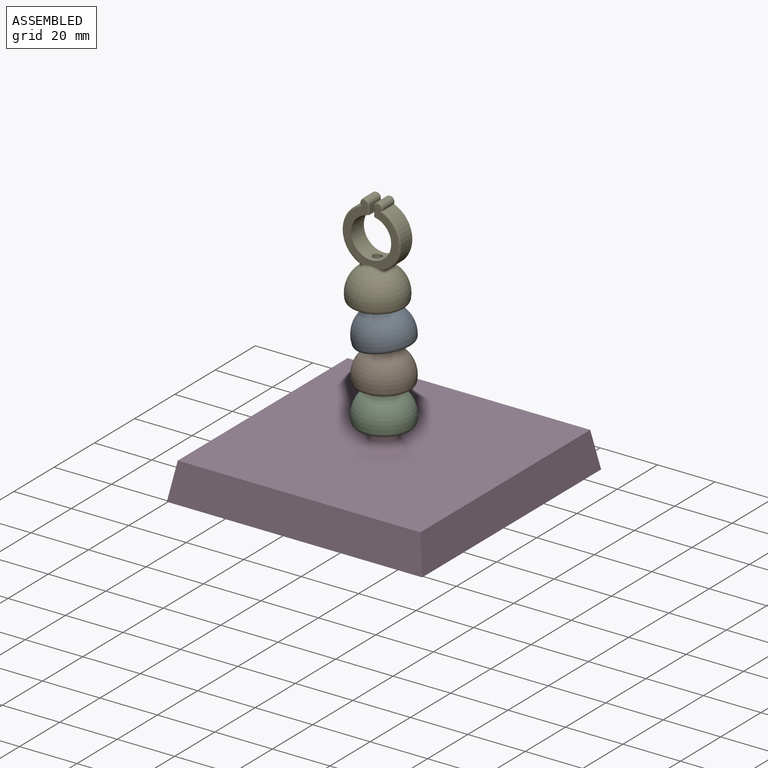
[diagram: assembled view]
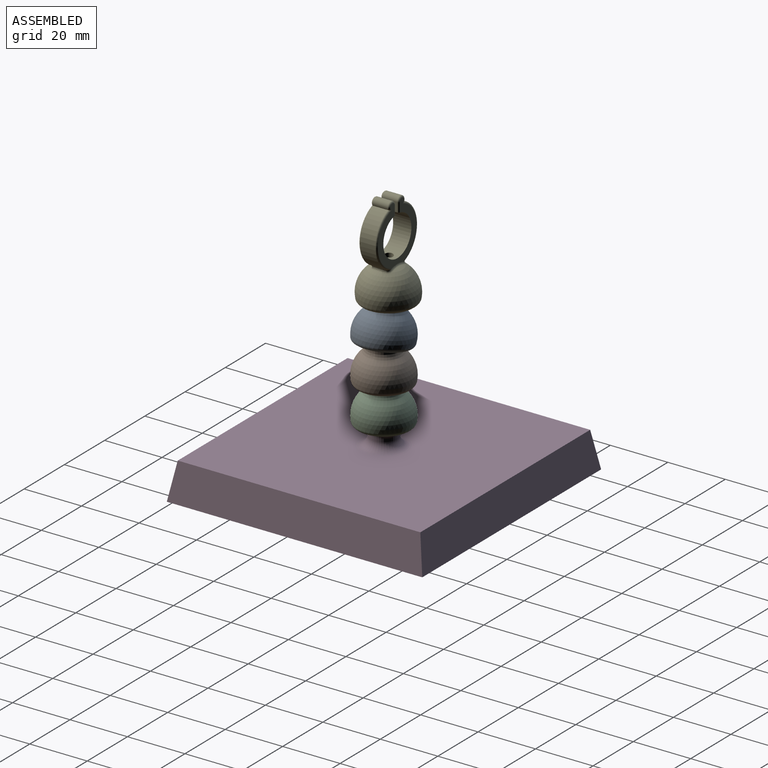
[diagram: assembled view, second angle]
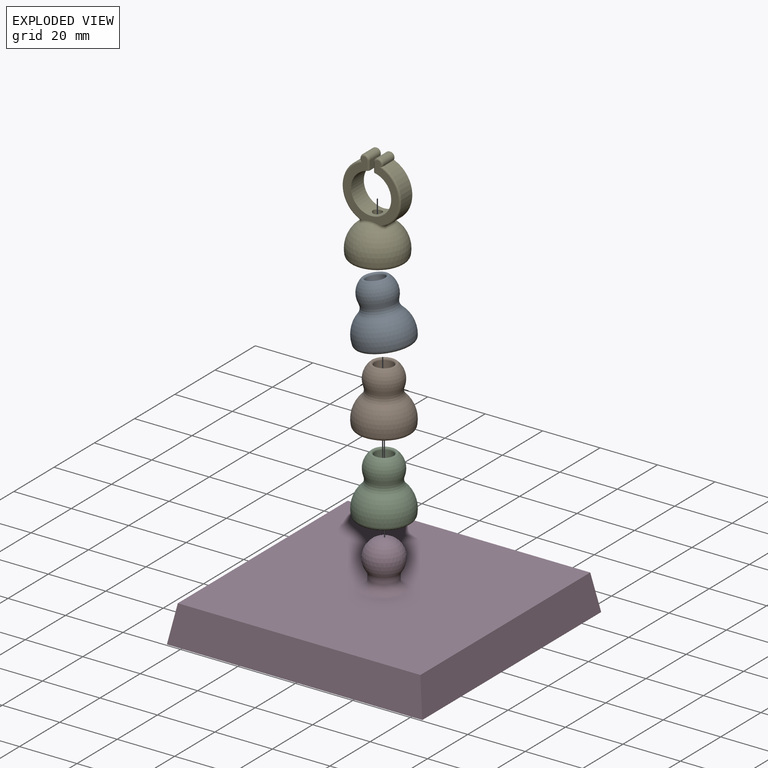
[diagram: exploded view]
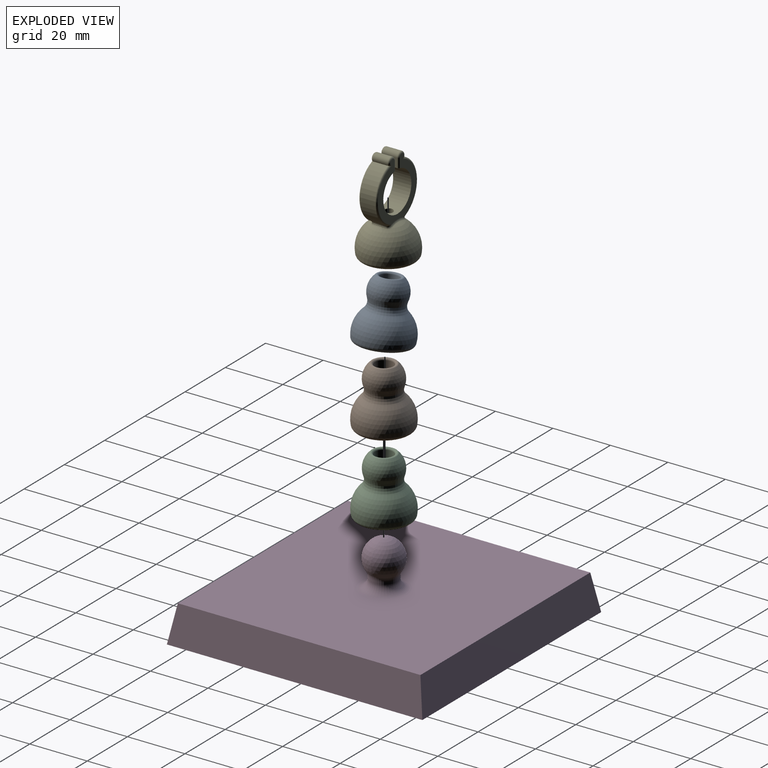
[diagram: exploded view, second angle]
ASSEMBLY  parts=5 mates=4
PART A: 8 faces, bbox 20.6x20.6x20.6 mm
  f0: sphere r=6.35mm, area 280.5mm2, adj f2,f6
  f1: sphere r=6.48mm, area 268.3mm2, adj f3,f7
  f2: torus R=8.88mm, axis (0,0,1), area 139.7mm2, adj f0,f4
  f3: torus R=7.94mm, axis (0,0,1), area 243.4mm2, adj f1,f4
  f4: sphere r=9.65mm, area 524mm2, adj f2,f3
  f5: cylinder r=3.17mm len=10.95mm, axis (0,0,-1), area 218.5mm2, adj f6,f7
  f6: torus R=3.81mm, axis (0,0,-1), area 33.1mm2, adj f0,f5
  f7: torus R=3.81mm, axis (0,0,-1), area 13.1mm2, adj f1,f5
PART B: same geometry as A
PART C: same geometry as A
PART D: 15 faces, bbox 88.9x88.9x28.7 mm
  f0: plane 88.9x12.7mm, normal (0.98,0,0.17), area 1117.6mm2, adj f1,f3,f4,f5
  f1: plane 88.9x12.7mm, normal (0,0.98,0.17), area 1117.6mm2, adj f0,f2,f4,f5
  f2: plane 88.9x12.7mm, normal (-0.98,0,0.17), area 1117.6mm2, adj f1,f3,f4,f5
  f3: plane 88.9x12.7mm, normal (0,-0.98,0.17), area 1117.6mm2, adj f0,f2,f4,f5
  f4: plane 84.42x84.42mm, normal (0,0,1), area 6930.2mm2, adj f0,f1,f2,f3,f13
  f5: plane 88.9x88.9mm, normal (0,0,-1), area 1088.7mm2, adj f0,f1,f2,f3,f8,f9,f10,f11
  f6: sphere r=6.48mm, area 414.7mm2, adj f14
  f7: cone r=4.76mm half-angle=0.4deg, axis (0,0,-1), area 24.3mm2, adj f13,f14
  f8: plane 82.55x9.53mm, normal (-0.94,0,-0.34), area 801.6mm2, adj f5,f9,f11,f12
  f9: plane 82.55x9.53mm, normal (0,0.94,-0.34), area 801.6mm2, adj f5,f8,f10,f12
  f10: plane 82.55x9.53mm, normal (0.94,0,-0.34), area 801.6mm2, adj f5,f9,f11,f12
  f11: plane 82.55x9.53mm, normal (0,-0.94,-0.34), area 801.6mm2, adj f5,f8,f10,f12
  f12: plane 75.62x75.62mm, normal (0,0,-1), area 5717.8mm2, adj f8,f9,f10,f11
  f13: torus R=7.91mm, axis (0,0,1), area 184mm2, adj f4,f7
  f14: torus R=7.91mm, axis (0,0,1), area 60.7mm2, adj f6,f7
PART E: 33 faces, bbox 22x20.6x33.2 mm
  f0: cylinder r=6.99mm len=13.97mm, axis (0,1,0), area 260.3mm2, adj f8,f9,f10,f11,f14,f16,f18,f20
  f1: sphere r=6.48mm, area 301.3mm2, adj f23,f32
  f2: cylinder r=10.16mm len=18.39mm, axis (0,1,0), area 117.7mm2, adj f4,f7,f12,f27
  f3: cylinder r=10.16mm len=18.39mm, axis (0,1,0), area 117.7mm2, adj f5,f6,f13,f28
  f4: torus R=9.56mm, axis (0,-1,0), area 22mm2, adj f2,f9,f17,f25
  f5: torus R=9.56mm, axis (0,-1,0), area 22mm2, adj f3,f9,f15,f26
  f6: torus R=9.56mm, axis (0,-1,0), area 22mm2, adj f3,f10,f19,f30
  f7: torus R=9.56mm, axis (0,-1,0), area 22mm2, adj f2,f10,f21,f29
  f8: plane 5.16x3.14mm, normal (-1,0,0), area 16.2mm2, adj f0,f13,f14,f18
  f9: plane 20.26x19.13mm, normal (0,-1,0), area 129.8mm2, adj f0,f4,f5,f14,f15,f16,f17,f24
  f10: plane 20.26x19.13mm, normal (0,1,0), area 129.8mm2, adj f0,f6,f7,f18,f19,f20,f21,f31
  f11: plane 5.16x3.14mm, normal (1,0,0), area 16.2mm2, adj f0,f12,f16,f20
  f12: cylinder r=1.59mm len=5.16mm, axis (0,-1,0), area 29.8mm2, adj f2,f11,f17,f21
  f13: cylinder r=1.59mm len=5.16mm, axis (0,-1,0), area 29.8mm2, adj f3,f8,f15,f19
  f14: cylinder r=0.6mm len=3.24mm, axis (0,0,-1), area 3mm2, adj f0,f8,f9,f15
  f15: torus R=0.99mm, axis (0,-1,0), area 4.9mm2, adj f5,f9,f13,f14
  f16: cylinder r=0.6mm len=3.24mm, axis (0,0,1), area 3mm2, adj f0,f9,f11,f17
  f17: torus R=0.99mm, axis (0,-1,0), area 4.9mm2, adj f4,f9,f12,f16
  f18: cylinder r=0.6mm len=3.24mm, axis (0,0,1), area 3mm2, adj f0,f8,f10,f19
  f19: torus R=0.99mm, axis (0,-1,0), area 4.9mm2, adj f6,f10,f13,f18
  f20: cylinder r=0.6mm len=3.24mm, axis (0,0,-1), area 3mm2, adj f0,f10,f11,f21
  f21: torus R=0.99mm, axis (0,-1,0), area 4.9mm2, adj f7,f10,f12,f20
  f22: sphere r=9.65mm, area 612.8mm2, adj f23,f24,f25,f26,f27,f28,f29,f30
  f23: torus R=7.94mm, axis (0,0,1), area 243.4mm2, adj f1,f22
  f24: torus R=9.66mm, axis (0,-1,0), area 5.2mm2, adj f9,f22,f25,f26
  f25: bspline ~2.97x1.51mm, area 2.8mm2, adj f4,f22,f24,f27
  f26: bspline ~2.97x1.51mm, area 2.8mm2, adj f5,f22,f24,f28
  f27: bspline ~7.93x1.92mm, area 8.1mm2, adj f2,f22,f25,f29
  f28: bspline ~7.93x1.92mm, area 8.1mm2, adj f3,f22,f26,f30
  f29: bspline ~2.97x1.51mm, area 2.8mm2, adj f7,f22,f27,f31
  f30: bspline ~2.97x1.51mm, area 2.8mm2, adj f6,f22,f28,f31
  f31: torus R=9.66mm, axis (0,-1,0), area 5.2mm2, adj f10,f22,f29,f30
  f32: cylinder r=1.59mm len=5.29mm, axis (0,0,1), area 51.9mm2, adj f0,f1
PLACE A rot(axis=(0,-1,0),10deg) t=(2.25,0.83,-31.87)mm
PLACE B rot(axis=(-0.15,0.11,-0.98),0deg) t=(2.25,0.83,-44.57)mm
PLACE C rot(axis=(-0.15,0.11,-0.98),0deg) t=(2.25,0.83,-57.27)mm
PLACE D rot(axis=(-0.15,0.11,-0.98),0deg) t=(2.25,0.83,-79.5)mm
PLACE E rot(axis=(1,0,0),0.2deg) t=(0.04,0.78,-0.99)mm
MATE ball D.f14 <-> C.f2  axis (0,0,1) through (2.25,0.83,-57.27)mm
MATE ball B.f2 <-> C.f2  axis (0,0,1) through (2.25,0.83,-44.57)mm
MATE ball E.f23 <-> A.f2  axis (0,0,1) through (0.04,0.83,-19.37)mm
MATE ball B.f2 <-> A.f2  axis (0,0,1) through (2.25,0.83,-31.87)mm
